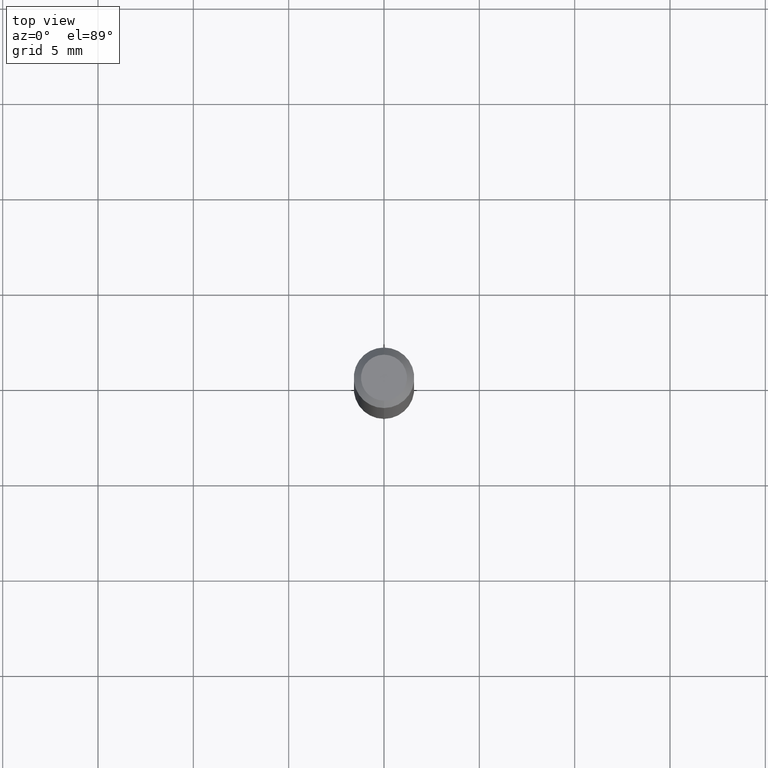
[diagram: clean part render]
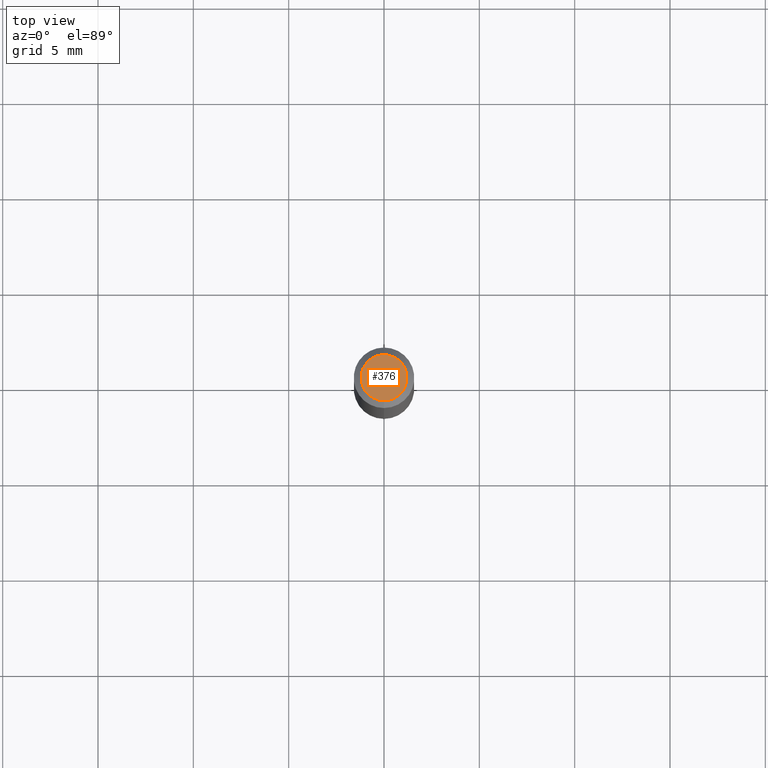
[diagram: same view with one face highlighted and labeled with its STEP entity id]
A machine part, top view. The second image highlights one B-rep face of the part: STEP entity #376.
In plain terms, the highlighted planar face has unit normal (0, -0, -1).
Its self-contained STEP definition (entity closure, byte-faithful):
#15 = VERTEX_POINT ( 'NONE', #66 ) ;
#22 = EDGE_CURVE ( 'NONE', #15, #128, #217, .T. ) ;
#37 = DIRECTION ( 'NONE',  ( -6.982962677686266711E-15, -1.000000000000000000, 3.491300227192590875E-15 ) ) ;
#55 = CARTESIAN_POINT ( 'NONE',  ( 1.602081019360384933E-45, -2.287110169977683419E-31, -6.550883685579755119E-17 ) ) ;
#66 = CARTESIAN_POINT ( 'NONE',  ( 3.840629472727447874E-16, 0.04749999999999999362, -2.313455976474456035E-16 ) ) ;
#72 = EDGE_CURVE ( 'NONE', #128, #15, #297, .T. ) ;
#128 = VERTEX_POINT ( 'NONE', #228 ) ;
#138 = DIRECTION ( 'NONE',  ( 6.982962677686265922E-15, 1.000000000000000000, -3.491300227192590875E-15 ) ) ;
#196 = ORIENTED_EDGE ( 'NONE', *, *, #72, .T. ) ;
#217 = CIRCLE ( 'NONE', #287, 0.04749999999999999362 ) ;
#220 = DIRECTION ( 'NONE',  ( 2.445595275774767937E-29, -3.491300227192590875E-15, -1.000000000000000000 ) ) ;
#228 = CARTESIAN_POINT ( 'NONE',  ( -3.773273898774340269E-16, -0.04749999999999999362, 1.003279239358504888E-16 ) ) ;
#287 = AXIS2_PLACEMENT_3D ( 'NONE', #55, #334, #412 ) ;
#296 = PLANE ( 'NONE',  #341 ) ;
#297 = CIRCLE ( 'NONE', #361, 0.04749999999999999362 ) ;
#301 = CARTESIAN_POINT ( 'NONE',  ( 1.602081019360384933E-45, -2.287110169977683419E-31, -6.550883685579755119E-17 ) ) ;
#334 = DIRECTION ( 'NONE',  ( -2.445595275774768217E-29, 3.491300227192590875E-15, 1.000000000000000000 ) ) ;
#341 = AXIS2_PLACEMENT_3D ( 'NONE', #504, #220, #138 ) ;
#361 = AXIS2_PLACEMENT_3D ( 'NONE', #301, #473, #37 ) ;
#376 = ADVANCED_FACE ( 'NONE', ( #416 ), #296, .F. ) ;
#401 = ORIENTED_EDGE ( 'NONE', *, *, #22, .T. ) ;
#412 = DIRECTION ( 'NONE',  ( -6.982962677686266711E-15, -1.000000000000000000, 3.491300227192590875E-15 ) ) ;
#416 = FACE_OUTER_BOUND ( 'NONE', #485, .T. ) ;
#473 = DIRECTION ( 'NONE',  ( -2.445595275774768217E-29, 3.491300227192590875E-15, 1.000000000000000000 ) ) ;
#485 = EDGE_LOOP ( 'NONE', ( #401, #196 ) ) ;
#504 = CARTESIAN_POINT ( 'NONE',  ( 3.316907271900976096E-16, 0.04749999999999999362, -1.985911792195468464E-16 ) ) ;